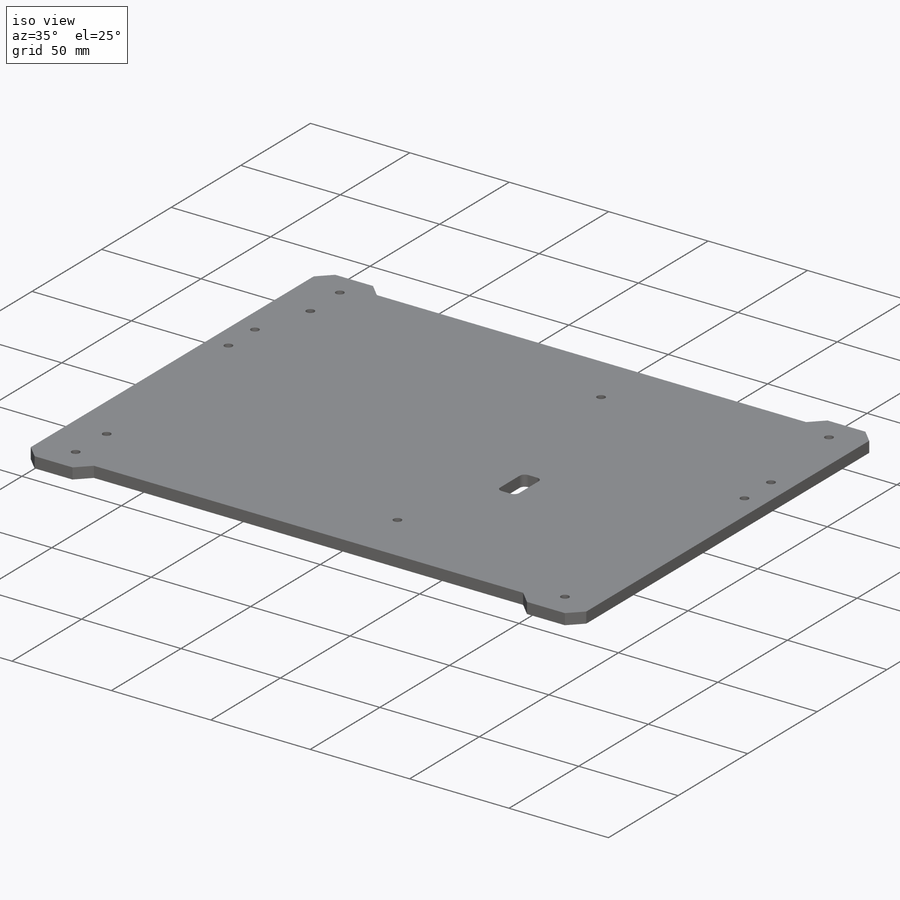
[diagram: iso view]
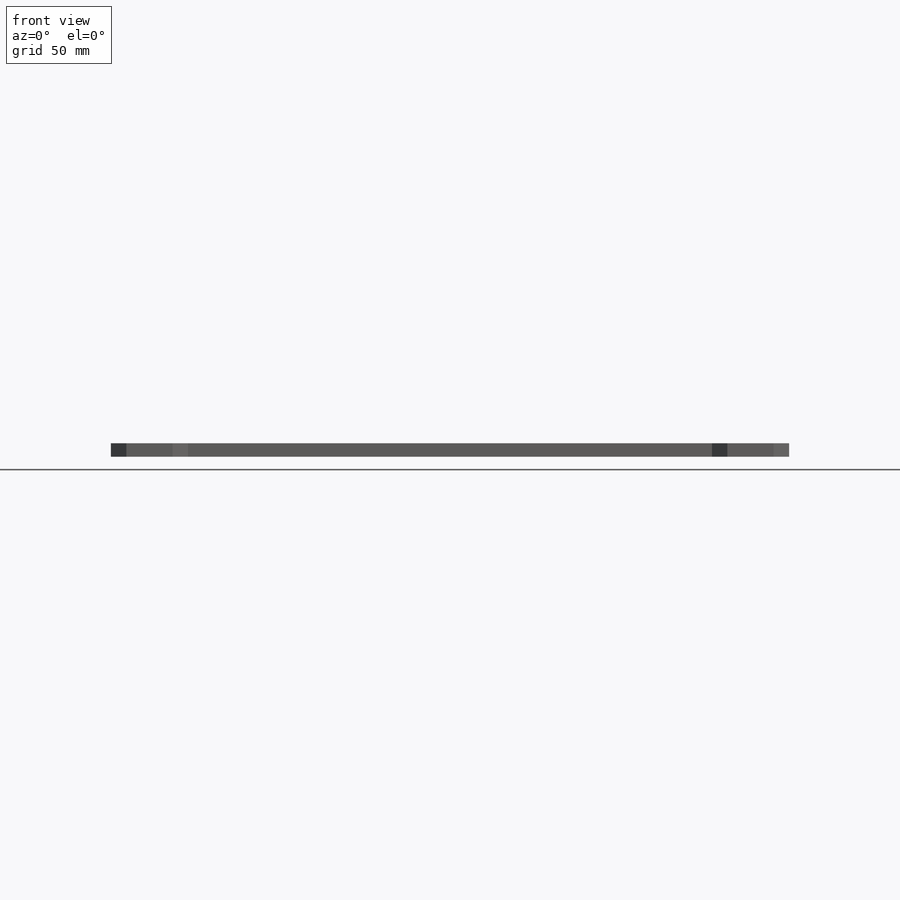
[diagram: front view]
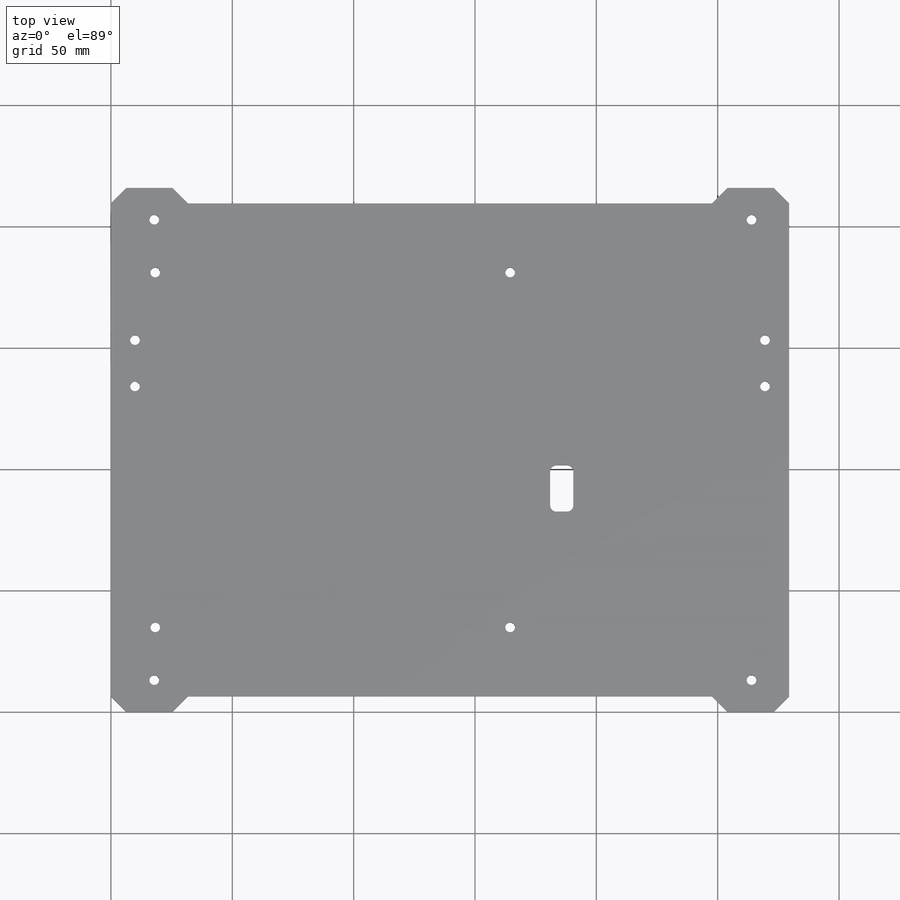
[diagram: top view]
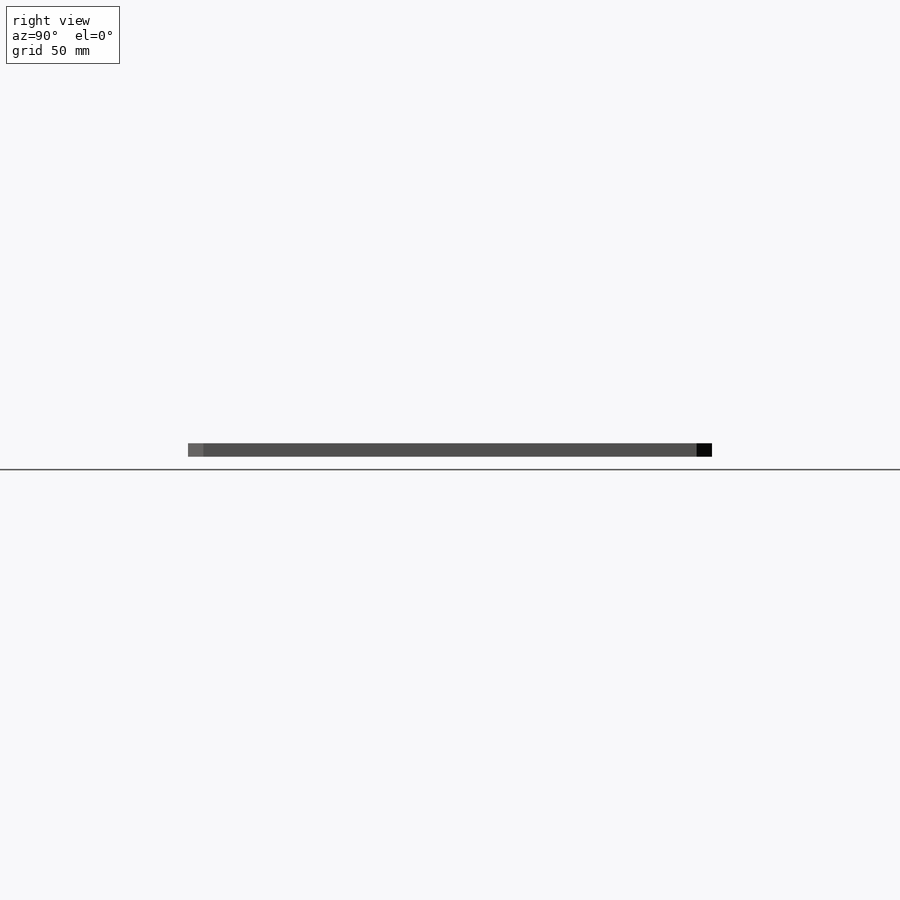
[diagram: right view]
SOLIDWORKS PART (.sldprt)
format: sldprt  version: not decoded by parser v0  size: 268,800 bytes
history: native  units: mm
features: sketch x7, hole x2, cut_extrude x2, material x1, extrude x1, chamfer x1 (+11 scaffold rows collapsed)
feature tree (25):
  scaffold x11  (default folders/planes/origin — collapsed)
  material  "Material <not specified>"
  sketch  "Sketch1"  dims[D1=279.4mm D2=215.9mm]
  extrude  "Boss-Extrude1"  Depth=5.5118mm
  hole  "5/32 (0.15625) Diameter Hole1"  Diameter=3.96875mm Depth=5.5118mm
  sketch  "Sketch3"  dims[D1=~13.096875mm D2=~134.14375mm D3=19.05mm D4=~9.921875mm D5=~13.096875mm D6=~17.859375mm D7=246.0625mm]
  sketch  "Sketch2"  dims[hole-wizard template sketch: 60 standard entries collapsed; hole parameters kept: c18.Thru Hole Depth=5.5118mm]
  hole  "5/32 (0.15625) Diameter Hole2"  Diameter=3.96875mm Depth=5.5118mm
  sketch  "Sketch5"  dims[D1=~18.25625mm D2=146.2278mm D3=73.1139mm]
  sketch  "Sketch4"  dims[hole-wizard template sketch: 60 standard entries collapsed; hole parameters kept: c18.Thru Hole Depth=5.5118mm]
  sketch  "Sketch6"  dims[c1.D2=25.4mm c1.D3=~16.638688mm c2.D3=45.0deg c2.D4=25.4mm c2.D5=~6.366837mm c3.D5=45.0deg c3.D1=6.35mm]
  cut_extrude  "Cut-Extrude2"  [1 undecoded]
  chamfer  "Chamfer1"  Distance=6.35mm Angle=45deg
  sketch  "Sketch7"  dims[D5=2.54mm D1=76.2mm D2=88.9mm D3=19.05mm D4=9.525mm]
  cut_extrude  "Cut-Extrude3"  [1 undecoded]
decode coverage: 11 of 13 modeling features carry decoded parameters
note: ~ marks probable driven/reference dimensions
note: 2 parameter values undecoded
note: suppression state not decoded; provenance and decode notes live in map.json
